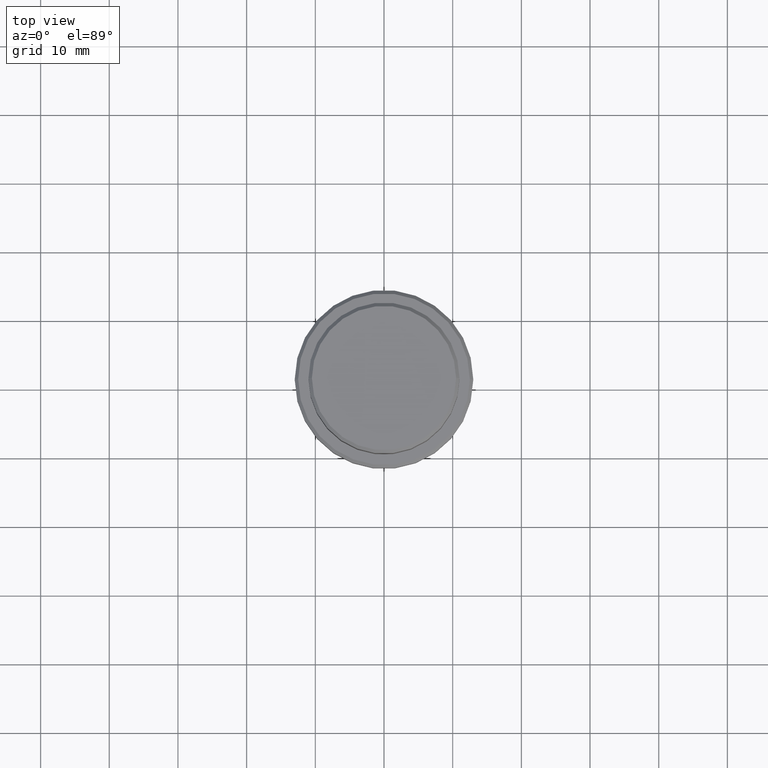
[diagram: clean part render]
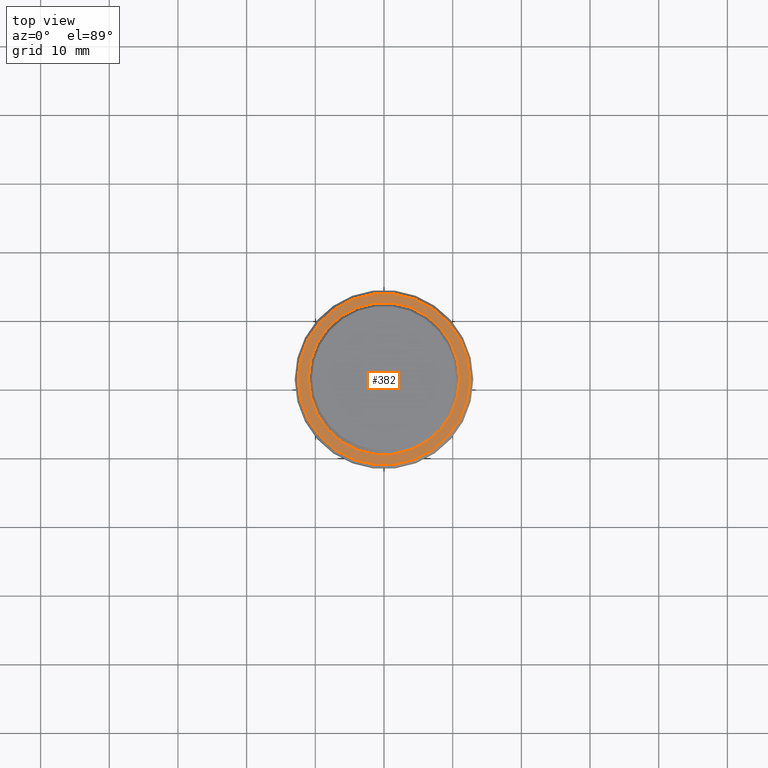
[diagram: same view with one face highlighted and labeled with its STEP entity id]
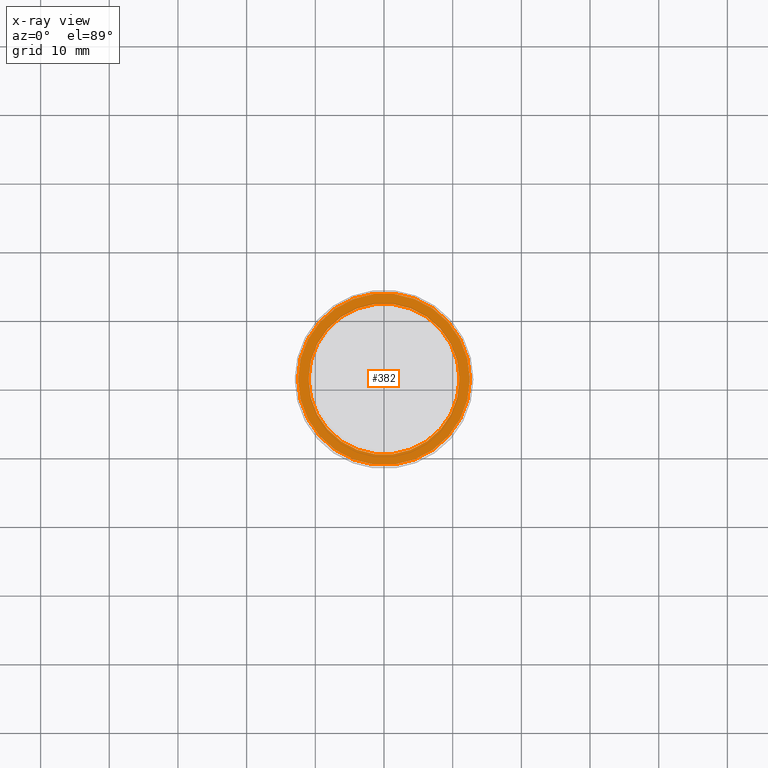
[diagram: x-ray of the same camera — body ghosted, the highlighted face saturated]
A machine part, top view. The second image highlights one B-rep face of the part: STEP entity #382.
The next image is the same camera in x-ray: the body ghosted, the highlighted face saturated — about 0% of this face is hidden behind the body in this view.
In plain terms, the highlighted planar face has unit normal (0, -0, 1).
Its self-contained STEP definition (entity closure, byte-faithful):
#11 = FACE_BOUND ( 'NONE', #451, .T. ) ;
#45 = DIRECTION ( 'NONE',  ( 1.000000000000000000, 0.000000000000000000, 0.000000000000000000 ) ) ;
#63 = DIRECTION ( 'NONE',  ( 1.000000000000000000, 0.000000000000000000, 0.000000000000000000 ) ) ;
#79 = AXIS2_PLACEMENT_3D ( 'NONE', #843, #731, #63 ) ;
#129 = VERTEX_POINT ( 'NONE', #959 ) ;
#139 = CARTESIAN_POINT ( 'NONE',  ( -10.99999999999996625, 1.347111479062084460E-15, -10.00000000000000000 ) ) ;
#279 = CIRCLE ( 'NONE', #555, 10.99999999999996625 ) ;
#287 = CARTESIAN_POINT ( 'NONE',  ( -12.49999999999999645, 0.000000000000000000, -10.00000000000000000 ) ) ;
#301 = ORIENTED_EDGE ( 'NONE', *, *, #930, .T. ) ;
#347 = PLANE ( 'NONE',  #531 ) ;
#382 = ADVANCED_FACE ( 'NONE', ( #666, #11 ), #347, .T. ) ;
#391 = ORIENTED_EDGE ( 'NONE', *, *, #850, .T. ) ;
#451 = EDGE_LOOP ( 'NONE', ( #301, #612 ) ) ;
#455 = CARTESIAN_POINT ( 'NONE',  ( 0.000000000000000000, 10.49999999999996625, -10.00000000000000000 ) ) ;
#466 = EDGE_CURVE ( 'NONE', #476, #894, #279, .T. ) ;
#467 = DIRECTION ( 'NONE',  ( 0.000000000000000000, -0.000000000000000000, 1.000000000000000000 ) ) ;
#476 = VERTEX_POINT ( 'NONE', #139 ) ;
#479 = CARTESIAN_POINT ( 'NONE',  ( 10.99999999999996625, 0.000000000000000000, -10.00000000000000000 ) ) ;
#508 = CIRCLE ( 'NONE', #1319, 10.99999999999996625 ) ;
#527 = DIRECTION ( 'NONE',  ( 0.000000000000000000, 0.000000000000000000, -1.000000000000000000 ) ) ;
#531 = AXIS2_PLACEMENT_3D ( 'NONE', #455, #467, #660 ) ;
#555 = AXIS2_PLACEMENT_3D ( 'NONE', #809, #1131, #1038 ) ;
#591 = CIRCLE ( 'NONE', #79, 12.49999999999999645 ) ;
#612 = ORIENTED_EDGE ( 'NONE', *, *, #466, .T. ) ;
#660 = DIRECTION ( 'NONE',  ( 1.000000000000000000, 0.000000000000000000, 0.000000000000000000 ) ) ;
#666 = FACE_OUTER_BOUND ( 'NONE', #1149, .T. ) ;
#723 = CARTESIAN_POINT ( 'NONE',  ( 0.000000000000000000, 0.000000000000000000, -10.00000000000000000 ) ) ;
#731 = DIRECTION ( 'NONE',  ( -0.000000000000000000, -0.000000000000000000, 1.000000000000000000 ) ) ;
#738 = AXIS2_PLACEMENT_3D ( 'NONE', #723, #1164, #45 ) ;
#762 = CIRCLE ( 'NONE', #738, 12.49999999999999645 ) ;
#809 = CARTESIAN_POINT ( 'NONE',  ( 0.000000000000000000, 0.000000000000000000, -10.00000000000000000 ) ) ;
#830 = VERTEX_POINT ( 'NONE', #287 ) ;
#843 = CARTESIAN_POINT ( 'NONE',  ( 0.000000000000000000, 0.000000000000000000, -10.00000000000000000 ) ) ;
#850 = EDGE_CURVE ( 'NONE', #129, #830, #762, .T. ) ;
#866 = CARTESIAN_POINT ( 'NONE',  ( 0.000000000000000000, 0.000000000000000000, -10.00000000000000000 ) ) ;
#894 = VERTEX_POINT ( 'NONE', #479 ) ;
#930 = EDGE_CURVE ( 'NONE', #894, #476, #508, .T. ) ;
#959 = CARTESIAN_POINT ( 'NONE',  ( 12.49999999999999645, 1.561424668912875111E-15, -10.00000000000000000 ) ) ;
#1038 = DIRECTION ( 'NONE',  ( 1.000000000000000000, 0.000000000000000000, 0.000000000000000000 ) ) ;
#1057 = DIRECTION ( 'NONE',  ( 1.000000000000000000, 0.000000000000000000, 0.000000000000000000 ) ) ;
#1131 = DIRECTION ( 'NONE',  ( 0.000000000000000000, 0.000000000000000000, -1.000000000000000000 ) ) ;
#1149 = EDGE_LOOP ( 'NONE', ( #1235, #391 ) ) ;
#1164 = DIRECTION ( 'NONE',  ( -0.000000000000000000, -0.000000000000000000, 1.000000000000000000 ) ) ;
#1235 = ORIENTED_EDGE ( 'NONE', *, *, #1411, .T. ) ;
#1319 = AXIS2_PLACEMENT_3D ( 'NONE', #866, #527, #1057 ) ;
#1411 = EDGE_CURVE ( 'NONE', #830, #129, #591, .T. ) ;